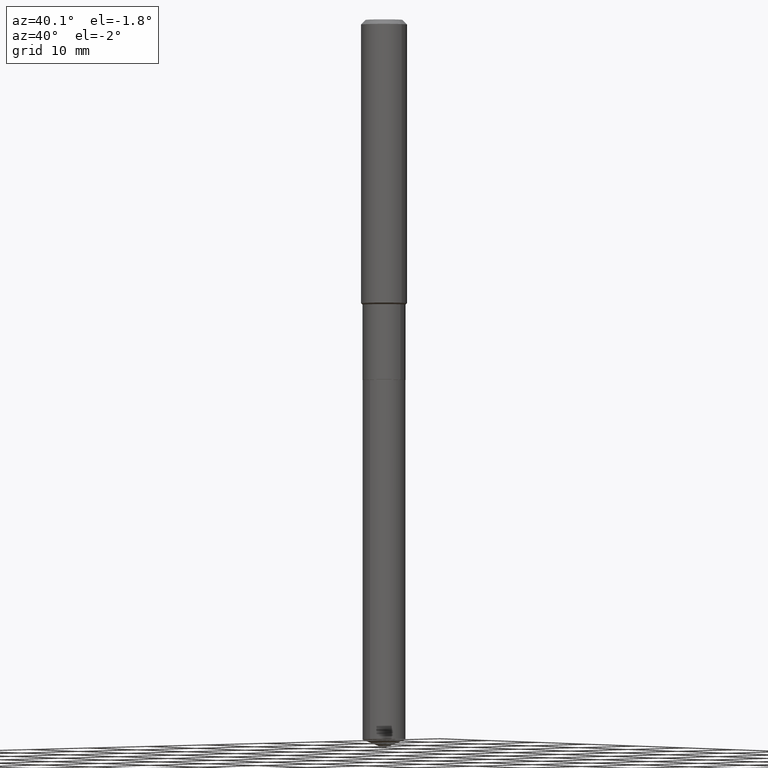
[diagram: clean part render]
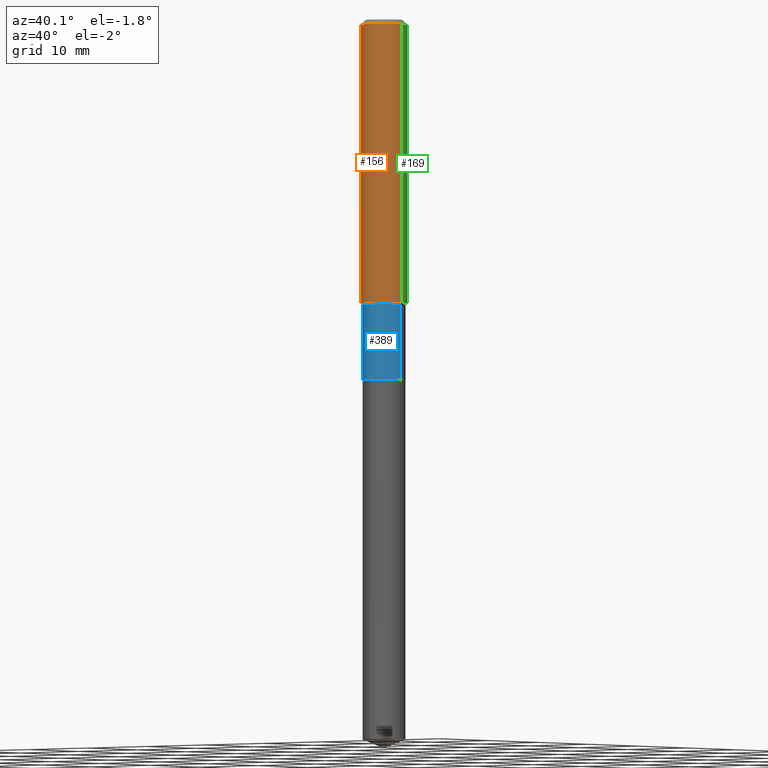
[diagram: same view with three faces highlighted in distinct colors, each labeled with its STEP entity id]
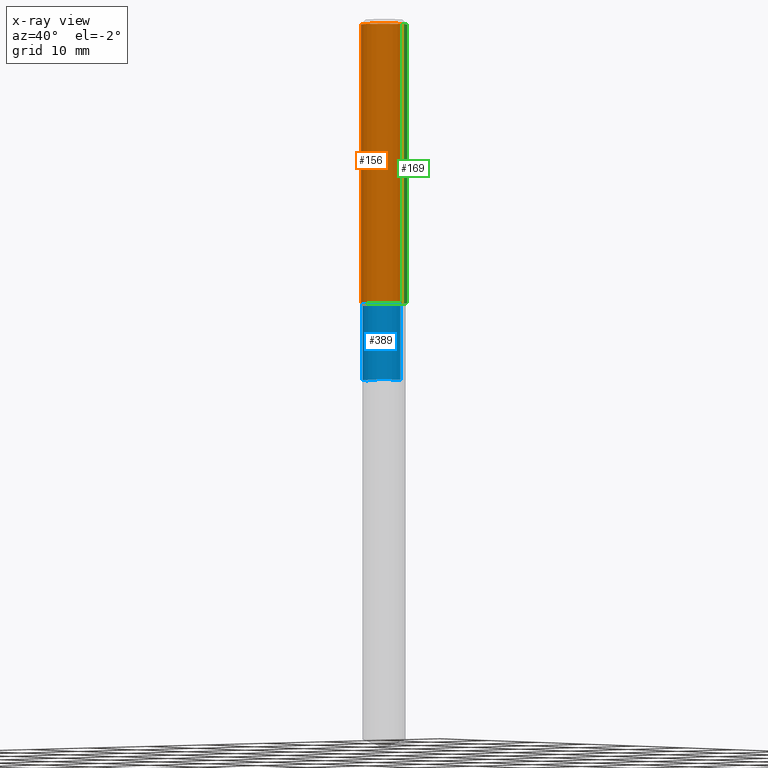
[diagram: x-ray of the same camera — body ghosted, the three highlighted faces saturated]
A machine part, auxiliary view with three faces highlighted in distinct colors.
The next image is the same camera in x-ray (body ghosted, the three faces saturated) — at least one of them is partly hidden behind the body in this view.
Their STEP definitions:

[orange] entity #156 — the highlighted cylindrical surface (edge-blend (fillet) strip) has radius 2.9997 mm, axis along (-0, 0, 1).
#3 = FACE_OUTER_BOUND ( 'NONE', #328, .T. ) ;
#8 = LINE ( 'NONE', #461, #316 ) ;
#11 = CARTESIAN_POINT ( 'NONE',  ( 0.1181000000000001632, -5.905316962452350864E-15, -1.455149999999999721 ) ) ;
#25 = EDGE_CURVE ( 'NONE', #175, #282, #267, .T. ) ;
#30 = CARTESIAN_POINT ( 'NONE',  ( -0.1180999999999999966, -1.742397958787859255E-15, -0.02362000000000014088 ) ) ;
#47 = DIRECTION ( 'NONE',  ( -2.445468806185136597E-29, 3.491481338843145583E-15, 1.000000000000000000 ) ) ;
#73 = AXIS2_PLACEMENT_3D ( 'NONE', #451, #414, #293 ) ;
#75 = DIRECTION ( 'NONE',  ( -2.445468806185136877E-29, 3.491481338843145188E-15, 1.000000000000000000 ) ) ;
#76 = CARTESIAN_POINT ( 'NONE',  ( 5.776197320209327532E-31, -8.246878922347559293E-17, -0.02362000000000014088 ) ) ;
#87 = ORIENTED_EDGE ( 'NONE', *, *, #238, .F. ) ;
#106 = CARTESIAN_POINT ( 'NONE',  ( 0.1180999999999999966, -9.071566814582237199E-16, -0.02362000000000014088 ) ) ;
#119 = DIRECTION ( 'NONE',  ( -2.445468806185136877E-29, 3.491481338843145188E-15, 1.000000000000000000 ) ) ;
#134 = LINE ( 'NONE', #255, #380 ) ;
#142 = VERTEX_POINT ( 'NONE', #11 ) ;
#156 = ADVANCED_FACE ( 'NONE', ( #3 ), #257, .T. ) ;
#175 = VERTEX_POINT ( 'NONE', #30 ) ;
#189 = DIRECTION ( 'NONE',  ( 1.000000000000000000, -6.982962677686266711E-15, 4.876176775795936353E-29 ) ) ;
#198 = EDGE_CURVE ( 'NONE', #479, #142, #276, .T. ) ;
#223 = CARTESIAN_POINT ( 'NONE',  ( 0.000000000000000000, 0.000000000000000000, 0.000000000000000000 ) ) ;
#228 = CARTESIAN_POINT ( 'NONE',  ( -0.1181000000000001632, -4.241478099284922826E-15, -1.455149999999999721 ) ) ;
#238 = EDGE_CURVE ( 'NONE', #479, #175, #134, .T. ) ;
#255 = CARTESIAN_POINT ( 'NONE',  ( -0.1181000000000000799, 8.391509709326788873E-16, -5.809262341591047988E-30 ) ) ;
#257 = CYLINDRICAL_SURFACE ( 'NONE', #476, 0.1181000000000000799 ) ;
#267 = CIRCLE ( 'NONE', #403, 0.1180999999999999966 ) ;
#275 = ORIENTED_EDGE ( 'NONE', *, *, #432, .T. ) ;
#276 = CIRCLE ( 'NONE', #73, 0.1181000000000001632 ) ;
#282 = VERTEX_POINT ( 'NONE', #106 ) ;
#293 = DIRECTION ( 'NONE',  ( 1.000000000000000000, -6.982962677686263555E-15, 0.000000000000000000 ) ) ;
#316 = VECTOR ( 'NONE', #119, 39.37007874015748143 ) ;
#328 = EDGE_LOOP ( 'NONE', ( #87, #429, #275, #373 ) ) ;
#373 = ORIENTED_EDGE ( 'NONE', *, *, #25, .F. ) ;
#380 = VECTOR ( 'NONE', #75, 39.37007874015748143 ) ;
#403 = AXIS2_PLACEMENT_3D ( 'NONE', #76, #47, #415 ) ;
#414 = DIRECTION ( 'NONE',  ( -2.445468806185136597E-29, 3.491481338843145583E-15, 1.000000000000000000 ) ) ;
#415 = DIRECTION ( 'NONE',  ( 1.000000000000000000, -6.982962677686266711E-15, 0.000000000000000000 ) ) ;
#417 = DIRECTION ( 'NONE',  ( -2.445468806185136597E-29, 3.491481338843145583E-15, 1.000000000000000000 ) ) ;
#429 = ORIENTED_EDGE ( 'NONE', *, *, #198, .T. ) ;
#432 = EDGE_CURVE ( 'NONE', #142, #282, #8, .T. ) ;
#451 = CARTESIAN_POINT ( 'NONE',  ( 3.558523933320300557E-29, -5.080629070217601812E-15, -1.455149999999999721 ) ) ;
#461 = CARTESIAN_POINT ( 'NONE',  ( 0.1181000000000000799, -8.246878922347486570E-16, 5.758764772215004644E-30 ) ) ;
#476 = AXIS2_PLACEMENT_3D ( 'NONE', #223, #417, #189 ) ;
#479 = VERTEX_POINT ( 'NONE', #228 ) ;

[blue] entity #389 — the highlighted cylindrical surface (edge-blend (fillet) strip) has radius 2.8003 mm, axis along (-0, 0, 1).
#5 = CARTESIAN_POINT ( 'NONE',  ( 0.1102499999999999730, -7.698716352149106840E-16, 5.375984895315018203E-30 ) ) ;
#38 = ORIENTED_EDGE ( 'NONE', *, *, #263, .T. ) ;
#72 = ORIENTED_EDGE ( 'NONE', *, *, #311, .F. ) ;
#100 = DIRECTION ( 'NONE',  ( -2.445468806185136597E-29, 3.491481338843145583E-15, 1.000000000000000000 ) ) ;
#109 = CARTESIAN_POINT ( 'NONE',  ( 0.1102500000000000008, -7.228762963940847545E-15, -1.849900000000000322 ) ) ;
#123 = DIRECTION ( 'NONE',  ( -2.445468806185136597E-29, 3.491481338843145583E-15, 1.000000000000000000 ) ) ;
#129 = VECTOR ( 'NONE', #336, 39.37007874015748143 ) ;
#141 = CARTESIAN_POINT ( 'NONE',  ( -0.1102499999999999869, -5.000090897551218961E-15, -1.849900000000000322 ) ) ;
#153 = FACE_OUTER_BOUND ( 'NONE', #406, .T. ) ;
#178 = ORIENTED_EDGE ( 'NONE', *, *, #420, .T. ) ;
#179 = CIRCLE ( 'NONE', #277, 0.1102500000000000008 ) ;
#181 = VERTEX_POINT ( 'NONE', #141 ) ;
#186 = AXIS2_PLACEMENT_3D ( 'NONE', #338, #100, #290 ) ;
#191 = CARTESIAN_POINT ( 'NONE',  ( -0.1102499999999999591, -5.000090897551218961E-15, -1.462999999999999856 ) ) ;
#204 = VERTEX_POINT ( 'NONE', #444 ) ;
#205 = VERTEX_POINT ( 'NONE', #109 ) ;
#220 = CARTESIAN_POINT ( 'NONE',  ( 4.523872744561885153E-29, -6.458891328725936072E-15, -1.849900000000000322 ) ) ;
#226 = DIRECTION ( 'NONE',  ( 1.000000000000000000, -6.982962677686266711E-15, 4.876176775795935793E-29 ) ) ;
#234 = EDGE_CURVE ( 'NONE', #366, #204, #390, .T. ) ;
#251 = LINE ( 'NONE', #362, #129 ) ;
#263 = EDGE_CURVE ( 'NONE', #181, #205, #179, .T. ) ;
#268 = VECTOR ( 'NONE', #297, 39.37007874015748143 ) ;
#277 = AXIS2_PLACEMENT_3D ( 'NONE', #220, #374, #285 ) ;
#285 = DIRECTION ( 'NONE',  ( 1.000000000000000000, -6.982962677686269077E-15, 0.000000000000000000 ) ) ;
#290 = DIRECTION ( 'NONE',  ( 1.000000000000000000, -6.982962677686262766E-15, 0.000000000000000000 ) ) ;
#297 = DIRECTION ( 'NONE',  ( -2.445468806185136877E-29, 3.491481338843145188E-15, 1.000000000000000000 ) ) ;
#309 = CYLINDRICAL_SURFACE ( 'NONE', #448, 0.1102499999999999730 ) ;
#311 = EDGE_CURVE ( 'NONE', #181, #366, #251, .T. ) ;
#336 = DIRECTION ( 'NONE',  ( -2.445468806185136877E-29, 3.491481338843145188E-15, 1.000000000000000000 ) ) ;
#338 = CARTESIAN_POINT ( 'NONE',  ( 3.577720863448854962E-29, -5.108037198727522179E-15, -1.462999999999999856 ) ) ;
#357 = ORIENTED_EDGE ( 'NONE', *, *, #234, .F. ) ;
#362 = CARTESIAN_POINT ( 'NONE',  ( -0.1102499999999999730, 7.833733661755102632E-16, -5.423125937006032068E-30 ) ) ;
#366 = VERTEX_POINT ( 'NONE', #191 ) ;
#374 = DIRECTION ( 'NONE',  ( -2.445468806185136597E-29, 3.491481338843145583E-15, 1.000000000000000000 ) ) ;
#377 = CARTESIAN_POINT ( 'NONE',  ( 0.000000000000000000, 0.000000000000000000, 0.000000000000000000 ) ) ;
#379 = LINE ( 'NONE', #5, #268 ) ;
#389 = ADVANCED_FACE ( 'NONE', ( #153 ), #309, .T. ) ;
#390 = CIRCLE ( 'NONE', #186, 0.1102499999999999591 ) ;
#406 = EDGE_LOOP ( 'NONE', ( #72, #38, #178, #357 ) ) ;
#420 = EDGE_CURVE ( 'NONE', #205, #204, #379, .T. ) ;
#444 = CARTESIAN_POINT ( 'NONE',  ( 0.1102499999999999591, -5.877908833942432075E-15, -1.462999999999999856 ) ) ;
#448 = AXIS2_PLACEMENT_3D ( 'NONE', #377, #123, #226 ) ;

[green] entity #169 — the highlighted cylindrical surface (edge-blend (fillet) strip) has radius 2.9997 mm, axis along (-0, 0, 1).
#7 = DIRECTION ( 'NONE',  ( -2.445468806185136597E-29, 3.491481338843145583E-15, 1.000000000000000000 ) ) ;
#8 = LINE ( 'NONE', #461, #316 ) ;
#11 = CARTESIAN_POINT ( 'NONE',  ( 0.1181000000000001632, -5.905316962452350864E-15, -1.455149999999999721 ) ) ;
#30 = CARTESIAN_POINT ( 'NONE',  ( -0.1180999999999999966, -1.742397958787859255E-15, -0.02362000000000014088 ) ) ;
#45 = CARTESIAN_POINT ( 'NONE',  ( 0.000000000000000000, 0.000000000000000000, 0.000000000000000000 ) ) ;
#70 = EDGE_CURVE ( 'NONE', #142, #479, #177, .T. ) ;
#75 = DIRECTION ( 'NONE',  ( -2.445468806185136877E-29, 3.491481338843145188E-15, 1.000000000000000000 ) ) ;
#89 = AXIS2_PLACEMENT_3D ( 'NONE', #384, #378, #303 ) ;
#93 = EDGE_LOOP ( 'NONE', ( #468, #200, #168, #211 ) ) ;
#106 = CARTESIAN_POINT ( 'NONE',  ( 0.1180999999999999966, -9.071566814582237199E-16, -0.02362000000000014088 ) ) ;
#119 = DIRECTION ( 'NONE',  ( -2.445468806185136877E-29, 3.491481338843145188E-15, 1.000000000000000000 ) ) ;
#134 = LINE ( 'NONE', #255, #380 ) ;
#142 = VERTEX_POINT ( 'NONE', #11 ) ;
#157 = AXIS2_PLACEMENT_3D ( 'NONE', #269, #304, #353 ) ;
#163 = AXIS2_PLACEMENT_3D ( 'NONE', #45, #7, #264 ) ;
#168 = ORIENTED_EDGE ( 'NONE', *, *, #407, .F. ) ;
#169 = ADVANCED_FACE ( 'NONE', ( #185 ), #343, .T. ) ;
#175 = VERTEX_POINT ( 'NONE', #30 ) ;
#177 = CIRCLE ( 'NONE', #89, 0.1181000000000001632 ) ;
#185 = FACE_OUTER_BOUND ( 'NONE', #93, .T. ) ;
#200 = ORIENTED_EDGE ( 'NONE', *, *, #238, .T. ) ;
#211 = ORIENTED_EDGE ( 'NONE', *, *, #432, .F. ) ;
#228 = CARTESIAN_POINT ( 'NONE',  ( -0.1181000000000001632, -4.241478099284922826E-15, -1.455149999999999721 ) ) ;
#238 = EDGE_CURVE ( 'NONE', #479, #175, #134, .T. ) ;
#248 = CIRCLE ( 'NONE', #157, 0.1180999999999999966 ) ;
#255 = CARTESIAN_POINT ( 'NONE',  ( -0.1181000000000000799, 8.391509709326788873E-16, -5.809262341591047988E-30 ) ) ;
#264 = DIRECTION ( 'NONE',  ( 1.000000000000000000, -6.982962677686266711E-15, 4.876176775795936353E-29 ) ) ;
#269 = CARTESIAN_POINT ( 'NONE',  ( 5.776197320209327532E-31, -8.246878922347559293E-17, -0.02362000000000014088 ) ) ;
#282 = VERTEX_POINT ( 'NONE', #106 ) ;
#303 = DIRECTION ( 'NONE',  ( 1.000000000000000000, -6.982962677686263555E-15, 0.000000000000000000 ) ) ;
#304 = DIRECTION ( 'NONE',  ( -2.445468806185136597E-29, 3.491481338843145583E-15, 1.000000000000000000 ) ) ;
#316 = VECTOR ( 'NONE', #119, 39.37007874015748143 ) ;
#343 = CYLINDRICAL_SURFACE ( 'NONE', #163, 0.1181000000000000799 ) ;
#353 = DIRECTION ( 'NONE',  ( 1.000000000000000000, -6.982962677686266711E-15, 0.000000000000000000 ) ) ;
#378 = DIRECTION ( 'NONE',  ( -2.445468806185136597E-29, 3.491481338843145583E-15, 1.000000000000000000 ) ) ;
#380 = VECTOR ( 'NONE', #75, 39.37007874015748143 ) ;
#384 = CARTESIAN_POINT ( 'NONE',  ( 3.558523933320300557E-29, -5.080629070217601812E-15, -1.455149999999999721 ) ) ;
#407 = EDGE_CURVE ( 'NONE', #282, #175, #248, .T. ) ;
#432 = EDGE_CURVE ( 'NONE', #142, #282, #8, .T. ) ;
#461 = CARTESIAN_POINT ( 'NONE',  ( 0.1181000000000000799, -8.246878922347486570E-16, 5.758764772215004644E-30 ) ) ;
#468 = ORIENTED_EDGE ( 'NONE', *, *, #70, .T. ) ;
#479 = VERTEX_POINT ( 'NONE', #228 ) ;